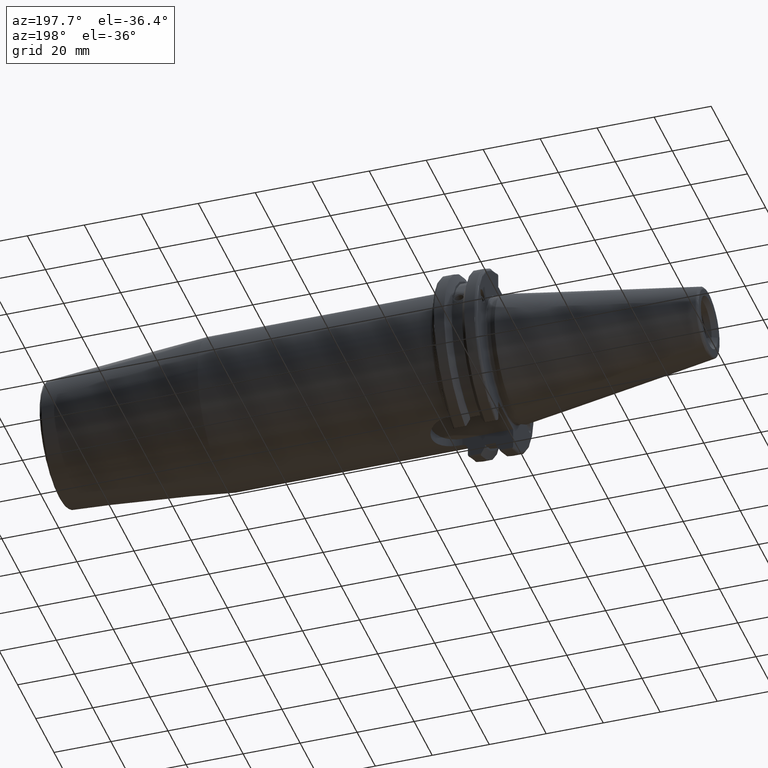
[diagram: clean part render]
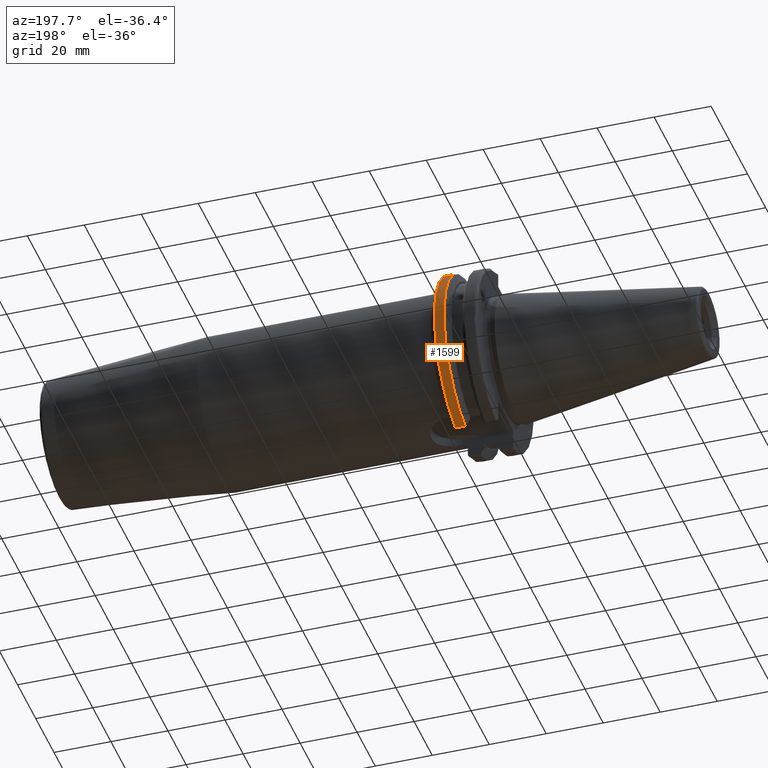
[diagram: same view with one face highlighted and labeled with its STEP entity id]
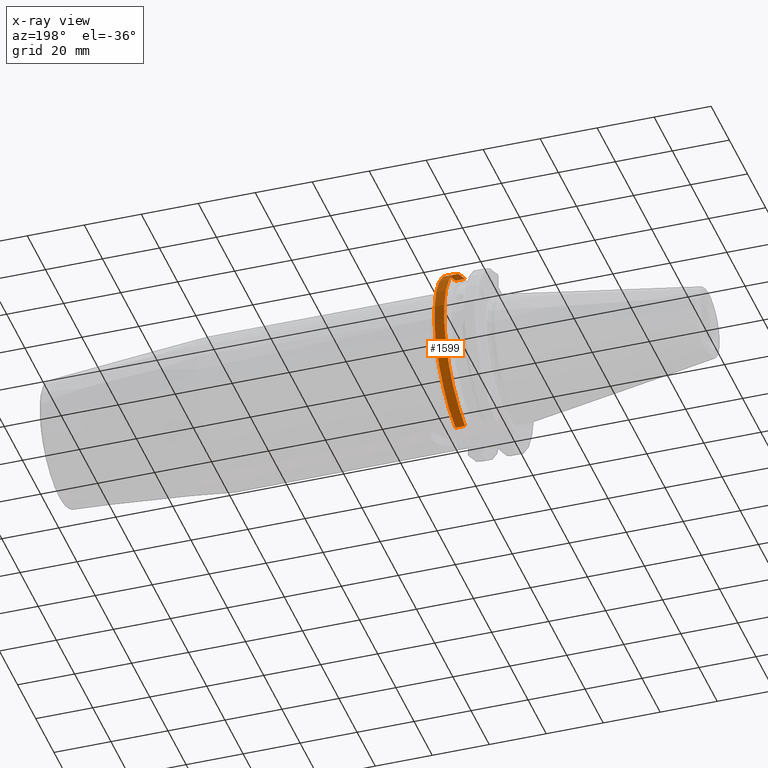
[diagram: x-ray of the same camera — body ghosted, the highlighted face saturated]
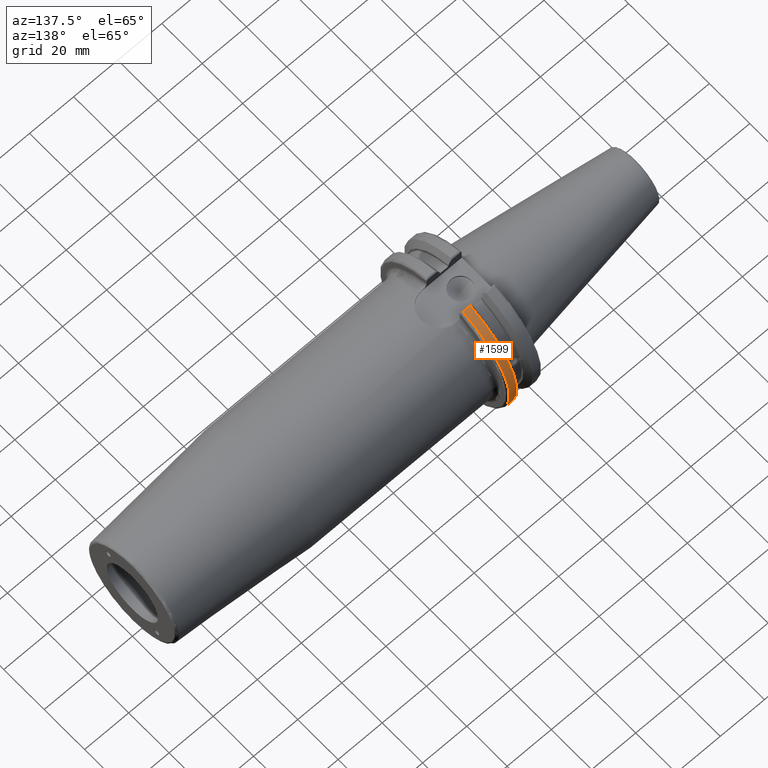
[diagram: same view with one face highlighted and labeled with its STEP entity id]
A machine part, auxiliary view. The second image highlights one B-rep face of the part: STEP entity #1599.
The next image is the same camera in x-ray: the body ghosted, the highlighted face saturated — about 0% of this face is hidden behind the body in this view.
A second angle (auxiliary view) of the same face is appended — the face is thin or edge-on in the first view.
In plain terms, the highlighted cylindrical surface (partial cylindrical patch) has radius 31.75 mm, axis along (1, 0, 0).
Its self-contained STEP definition (entity closure, byte-faithful):
#179=CYLINDRICAL_SURFACE('',#1801,31.75);
#260=FACE_OUTER_BOUND('',#364,.T.);
#364=EDGE_LOOP('',(#1459,#1460,#1461,#1462));
#393=LINE('',#2384,#480);
#459=LINE('',#3127,#546);
#480=VECTOR('',#1860,10.);
#546=VECTOR('',#2234,10.);
#558=CIRCLE('',#1650,31.75);
#615=CIRCLE('',#1781,31.75);
#652=VERTEX_POINT('',#2379);
#653=VERTEX_POINT('',#2383);
#659=VERTEX_POINT('',#2420);
#773=VERTEX_POINT('',#3056);
#816=EDGE_CURVE('',#652,#653,#393,.T.);
#824=EDGE_CURVE('',#652,#659,#558,.T.);
#992=EDGE_CURVE('',#653,#773,#615,.T.);
#1016=EDGE_CURVE('',#773,#659,#459,.T.);
#1459=ORIENTED_EDGE('',*,*,#992,.F.);
#1460=ORIENTED_EDGE('',*,*,#816,.F.);
#1461=ORIENTED_EDGE('',*,*,#824,.T.);
#1462=ORIENTED_EDGE('',*,*,#1016,.F.);
#1599=ADVANCED_FACE('',(#260),#179,.T.);
#1650=AXIS2_PLACEMENT_3D('',#2424,#1867,#1868);
#1781=AXIS2_PLACEMENT_3D('',#3057,#2182,#2183);
#1801=AXIS2_PLACEMENT_3D('',#3128,#2235,#2236);
#1860=DIRECTION('',(1.,0.,0.));
#1867=DIRECTION('center_axis',(1.,0.,0.));
#1868=DIRECTION('ref_axis',(0.,0.,-1.));
#2182=DIRECTION('center_axis',(1.,0.,0.));
#2183=DIRECTION('ref_axis',(0.,1.,-6.12323399573677E-17));
#2234=DIRECTION('',(-1.,0.,0.));
#2235=DIRECTION('center_axis',(1.,0.,0.));
#2236=DIRECTION('ref_axis',(0.,1.,0.));
#2379=CARTESIAN_POINT('',(14.6602667690756,8.67204822802685,-30.5427254764662));
#2383=CARTESIAN_POINT('',(18.05,8.67204822802685,-30.5427254764662));
#2384=CARTESIAN_POINT('',(16.8551333845378,8.67204822802685,-30.5427254764662));
#2420=CARTESIAN_POINT('',(14.6602667690756,8.67204822802685,30.5427254764662));
#2424=CARTESIAN_POINT('Origin',(14.6602667690756,0.,0.));
#3056=CARTESIAN_POINT('',(18.05,8.67204822802685,30.5427254764662));
#3057=CARTESIAN_POINT('Origin',(18.05,0.,0.));
#3127=CARTESIAN_POINT('',(16.8551333845378,8.67204822802685,30.5427254764662));
#3128=CARTESIAN_POINT('Origin',(16.8551333845378,0.,0.));